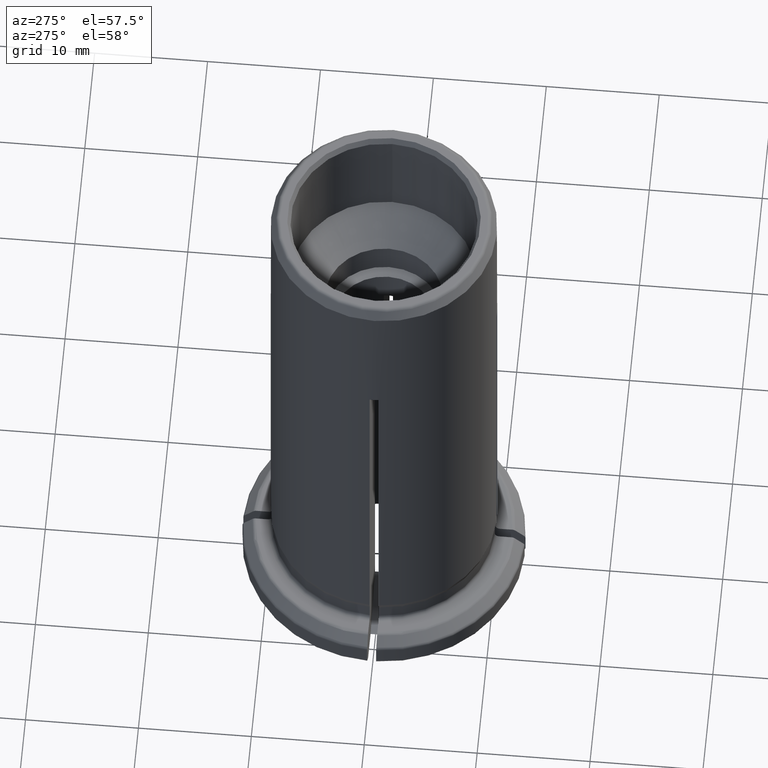
[diagram: clean part render]
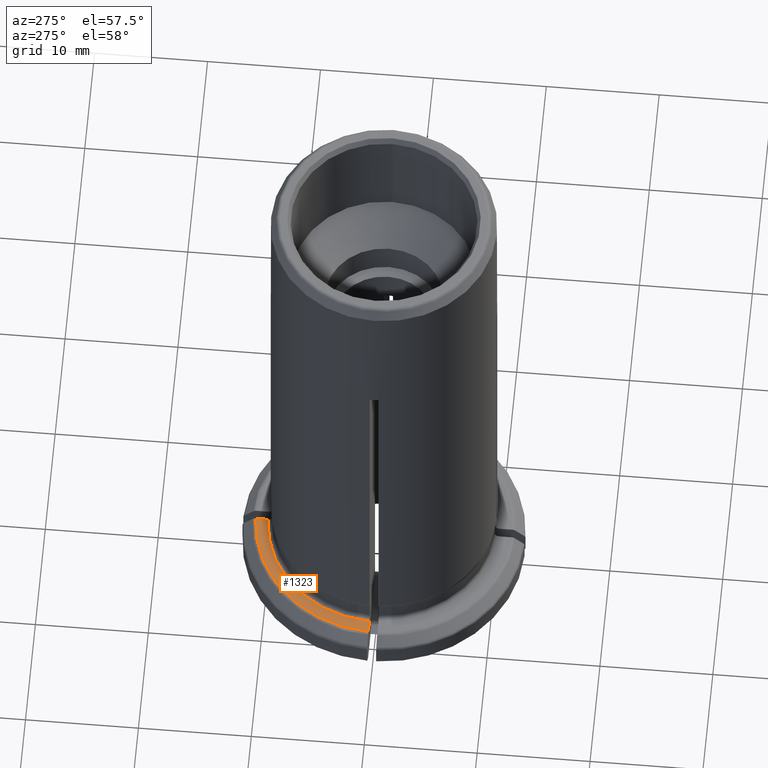
[diagram: same view with one face highlighted and labeled with its STEP entity id]
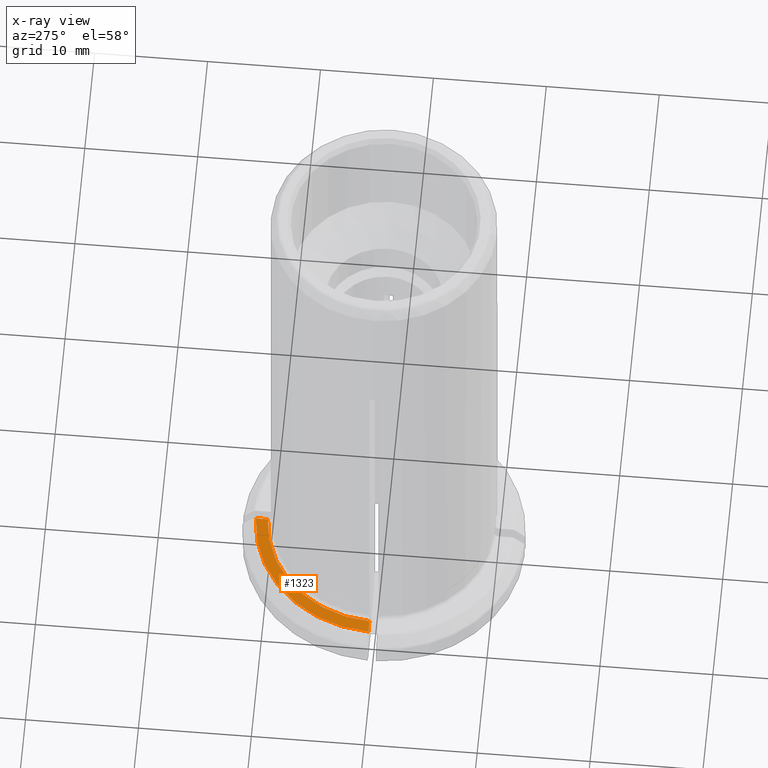
[diagram: x-ray of the same camera — body ghosted, the highlighted face saturated]
A machine part, auxiliary view. The second image highlights one B-rep face of the part: STEP entity #1323.
The next image is the same camera in x-ray: the body ghosted, the highlighted face saturated — about 0% of this face is hidden behind the body in this view.
In plain terms, the highlighted planar face has unit normal (0, 0, 1).
Its self-contained STEP definition (entity closure, byte-faithful):
#34=PLANE('',#1439);
#68=LINE('',#2172,#136);
#69=LINE('',#2174,#137);
#136=VECTOR('',#1658,1000.);
#137=VECTOR('',#1659,1000.);
#393=ORIENTED_EDGE('',*,*,#779,.F.);
#394=ORIENTED_EDGE('',*,*,#778,.F.);
#395=ORIENTED_EDGE('',*,*,#780,.T.);
#396=ORIENTED_EDGE('',*,*,#781,.T.);
#778=EDGE_CURVE('',#960,#959,#1070,.T.);
#779=EDGE_CURVE('',#959,#961,#68,.T.);
#780=EDGE_CURVE('',#960,#962,#69,.T.);
#781=EDGE_CURVE('',#962,#961,#1071,.T.);
#959=VERTEX_POINT('',#2164);
#960=VERTEX_POINT('',#2169);
#961=VERTEX_POINT('',#2173);
#962=VERTEX_POINT('',#2175);
#1070=CIRCLE('',#1438,10.25);
#1071=CIRCLE('',#1440,11.3343145750508);
#1127=EDGE_LOOP('',(#393,#394,#395,#396));
#1217=FACE_BOUND('',#1127,.T.);
#1323=ADVANCED_FACE('',(#1217),#34,.T.);
#1438=AXIS2_PLACEMENT_3D('',#2170,#1654,#1655);
#1439=AXIS2_PLACEMENT_3D('',#2171,#1656,#1657);
#1440=AXIS2_PLACEMENT_3D('',#2176,#1660,#1661);
#1654=DIRECTION('',(0.,0.,1.));
#1655=DIRECTION('',(1.,0.,0.));
#1656=DIRECTION('',(0.,0.,1.));
#1657=DIRECTION('',(1.,0.,0.));
#1658=DIRECTION('',(-1.,-1.22464679914735E-16,0.));
#1659=DIRECTION('',(-1.83697019872103E-16,1.,0.));
#1660=DIRECTION('',(0.,0.,1.));
#1661=DIRECTION('',(1.,0.,0.));
#2164=CARTESIAN_POINT('',(-10.2421921481658,0.399999999999999,-1.88710476666363E-11));
#2169=CARTESIAN_POINT('',(-0.399999999999998,10.2421921481683,-7.03974169995084E-16));
#2170=CARTESIAN_POINT('',(0.,0.,-8.67361737988404E-16));
#2171=CARTESIAN_POINT('',(10.25,0.,-3.52365706057789E-16));
#2172=CARTESIAN_POINT('',(10.25,0.400000000000001,-3.52365706057789E-16));
#2173=CARTESIAN_POINT('',(-11.3272541635742,0.399999999999999,-3.25260651745651E-16));
#2174=CARTESIAN_POINT('',(-0.399999999999996,-1.9563732616379E-15,-3.52365706057789E-16));
#2175=CARTESIAN_POINT('',(-0.399999999999998,11.3272541635742,-3.25260651745651E-16));
#2176=CARTESIAN_POINT('',(0.,0.,-3.25260651745651E-16));